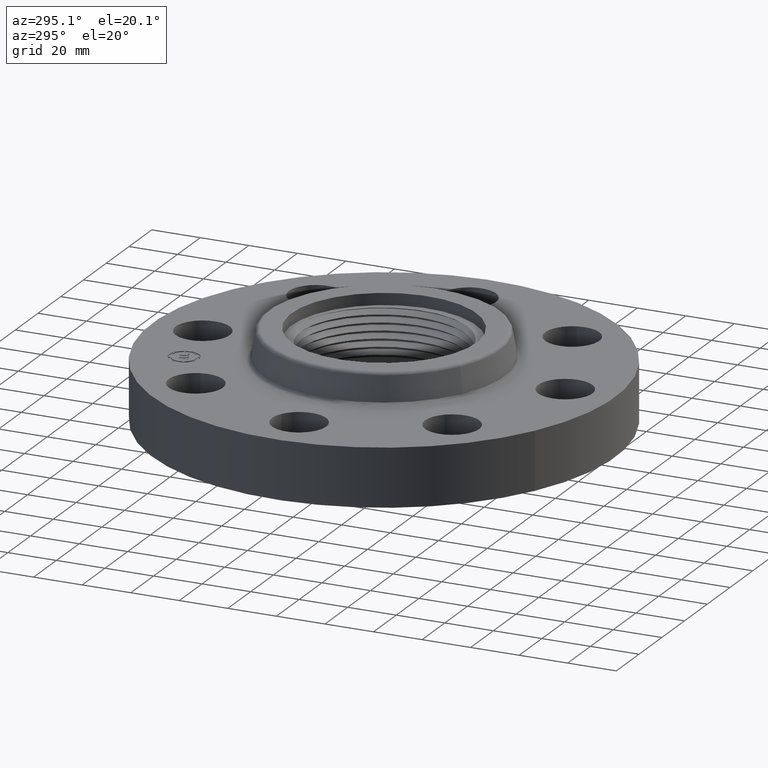
[diagram: clean part render]
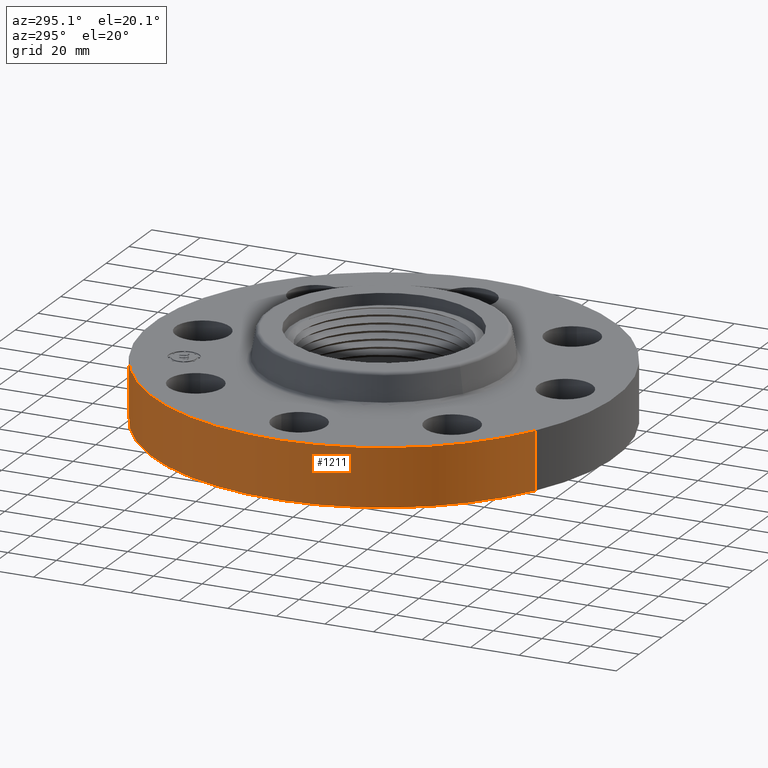
[diagram: same view with one face highlighted and labeled with its STEP entity id]
A machine part, auxiliary view. The second image highlights one B-rep face of the part: STEP entity #1211.
In plain terms, the highlighted cylindrical surface (partial cylindrical patch) has radius 95.25 mm, axis along (0, 0, -1).
Its self-contained STEP definition (entity closure, byte-faithful):
#861=AXIS2_PLACEMENT_3D('Circle Axis2P3D',#859,#860,$) ;
#1172=AXIS2_PLACEMENT_3D('Cylinder Axis2P3D',#1169,#1170,#1171) ;
#1202=AXIS2_PLACEMENT_3D('Circle Axis2P3D',#1200,#1201,$) ;
#859=CARTESIAN_POINT('Axis2P3D Location',(0.,0.,0.)) ;
#863=CARTESIAN_POINT('Vertex',(-1.79784576977,-3.2909346071,4.19611851827E-016)) ;
#865=CARTESIAN_POINT('Vertex',(1.79784576977,3.2909346071,4.19611851827E-016)) ;
#1169=CARTESIAN_POINT('Axis2P3D Location',(0.,0.,0.563750000002)) ;
#1174=CARTESIAN_POINT('Line Origine',(1.79784576977,3.2909346071,0.470000000002)) ;
#1178=CARTESIAN_POINT('Vertex',(1.79784576977,3.2909346071,0.940000000004)) ;
#1185=CARTESIAN_POINT('Vertex',(-1.79784576977,-3.2909346071,0.940000000004)) ;
#1188=CARTESIAN_POINT('Line Origine',(-1.79784576977,-3.2909346071,0.470000000002)) ;
#1200=CARTESIAN_POINT('Axis2P3D Location',(0.,0.,0.940000000004)) ;
#860=DIRECTION('Axis2P3D Direction',(0.,0.,-0.0393700787402)) ;
#1170=DIRECTION('Axis2P3D Direction',(0.,0.,-0.0393700787402)) ;
#1171=DIRECTION('Axis2P3D XDirection',(-0.0188750212049,-0.0345504945626,0.)) ;
#1175=DIRECTION('Vector Direction',(0.,0.,-0.0393700787402)) ;
#1189=DIRECTION('Vector Direction',(0.,0.,-0.0393700787402)) ;
#1201=DIRECTION('Axis2P3D Direction',(0.,0.,-0.0393700787402)) ;
#1176=VECTOR('Line Direction',#1175,0.0393700787402) ;
#1190=VECTOR('Line Direction',#1189,0.0393700787402) ;
#1206=ORIENTED_EDGE('',*,*,#867,.F.) ;
#1207=ORIENTED_EDGE('',*,*,#1192,.T.) ;
#1208=ORIENTED_EDGE('',*,*,#1204,.T.) ;
#1209=ORIENTED_EDGE('',*,*,#1180,.F.) ;
#1211=ADVANCED_FACE('PartBody',(#1210),#1173,.T.) ;
#862=CIRCLE('generated circle',#861,3.75000000002) ;
#1203=CIRCLE('generated circle',#1202,3.75000000002) ;
#1173=CYLINDRICAL_SURFACE('generated cylinder',#1172,3.75000000002) ;
#867=EDGE_CURVE('',#864,#866,#862,.T.) ;
#1180=EDGE_CURVE('',#866,#1179,#1177,.F.) ;
#1192=EDGE_CURVE('',#864,#1186,#1191,.F.) ;
#1204=EDGE_CURVE('',#1186,#1179,#1203,.T.) ;
#1205=EDGE_LOOP('',(#1206,#1207,#1208,#1209)) ;
#1210=FACE_OUTER_BOUND('',#1205,.T.) ;
#1177=LINE('Line',#1174,#1176) ;
#1191=LINE('Line',#1188,#1190) ;
#864=VERTEX_POINT('',#863) ;
#866=VERTEX_POINT('',#865) ;
#1179=VERTEX_POINT('',#1178) ;
#1186=VERTEX_POINT('',#1185) ;